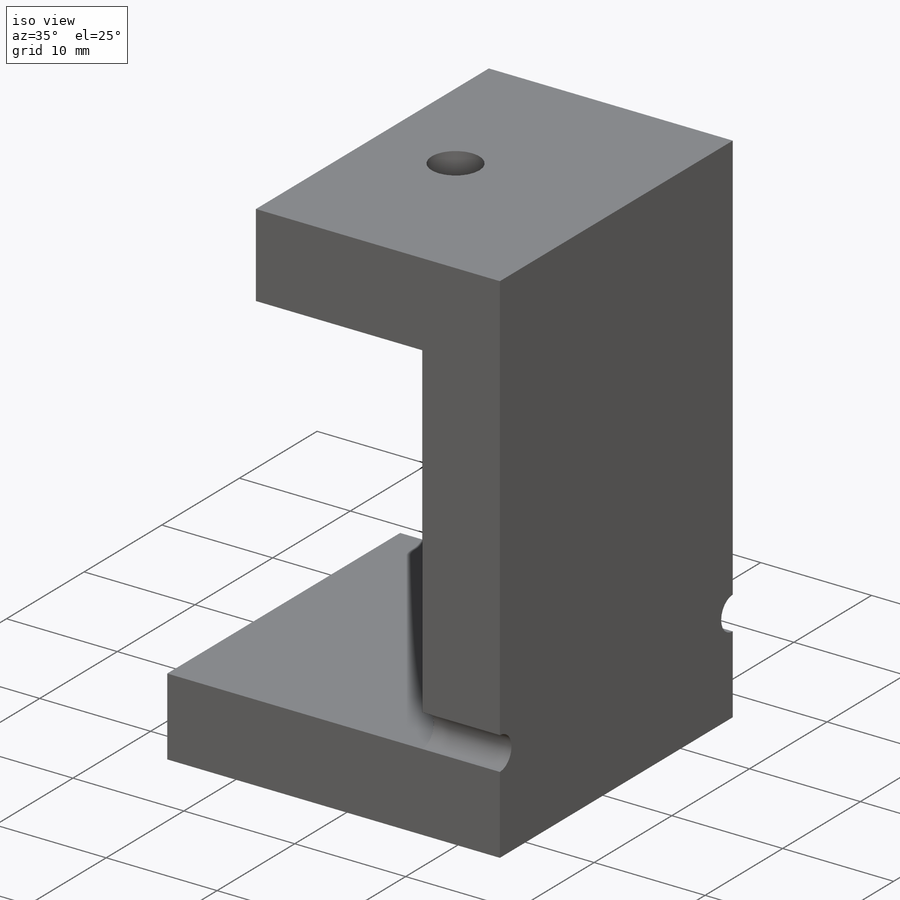
[diagram: iso view]
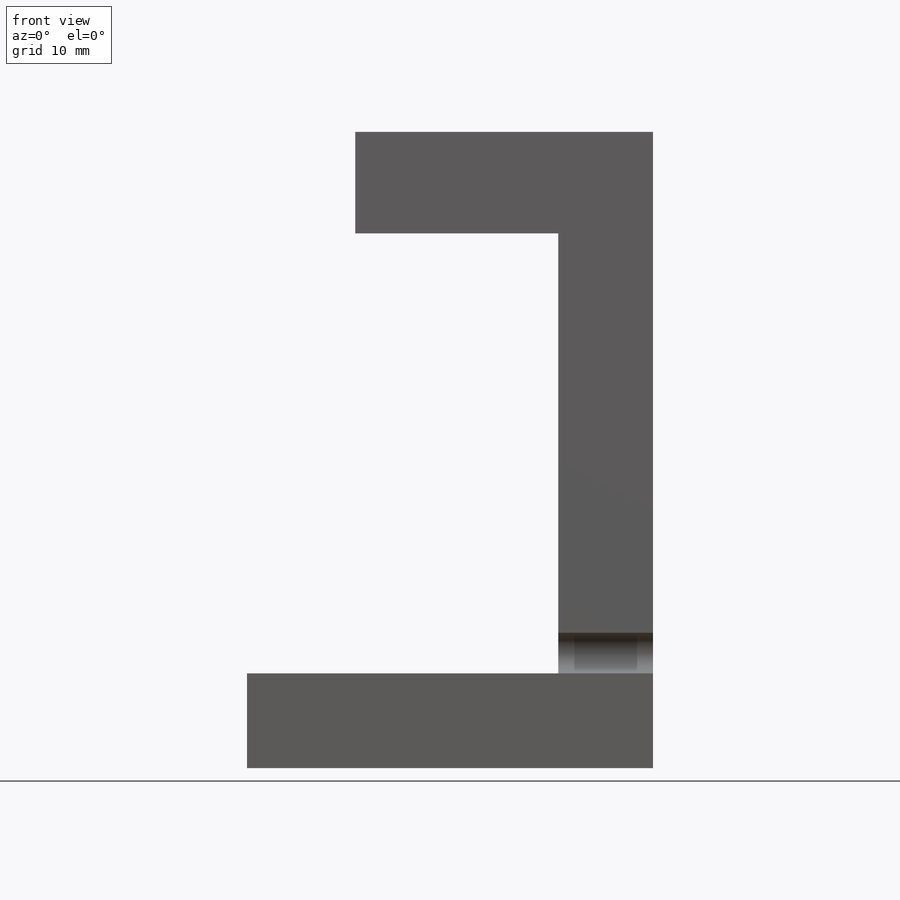
[diagram: front view]
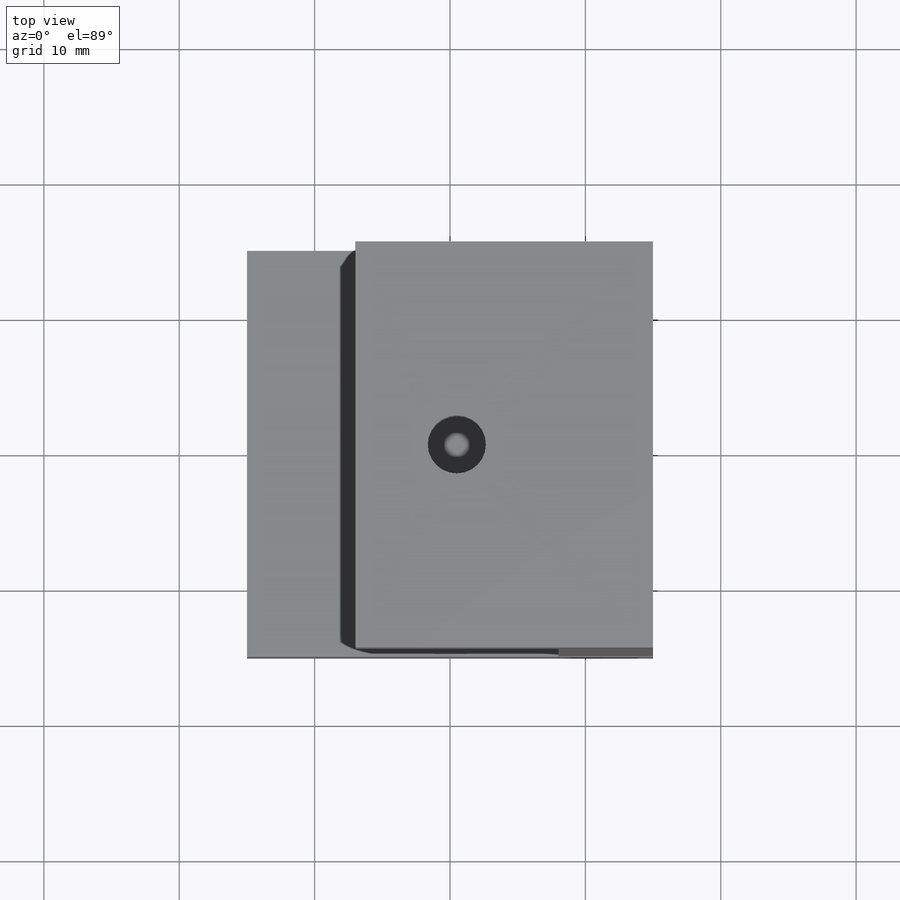
[diagram: top view]
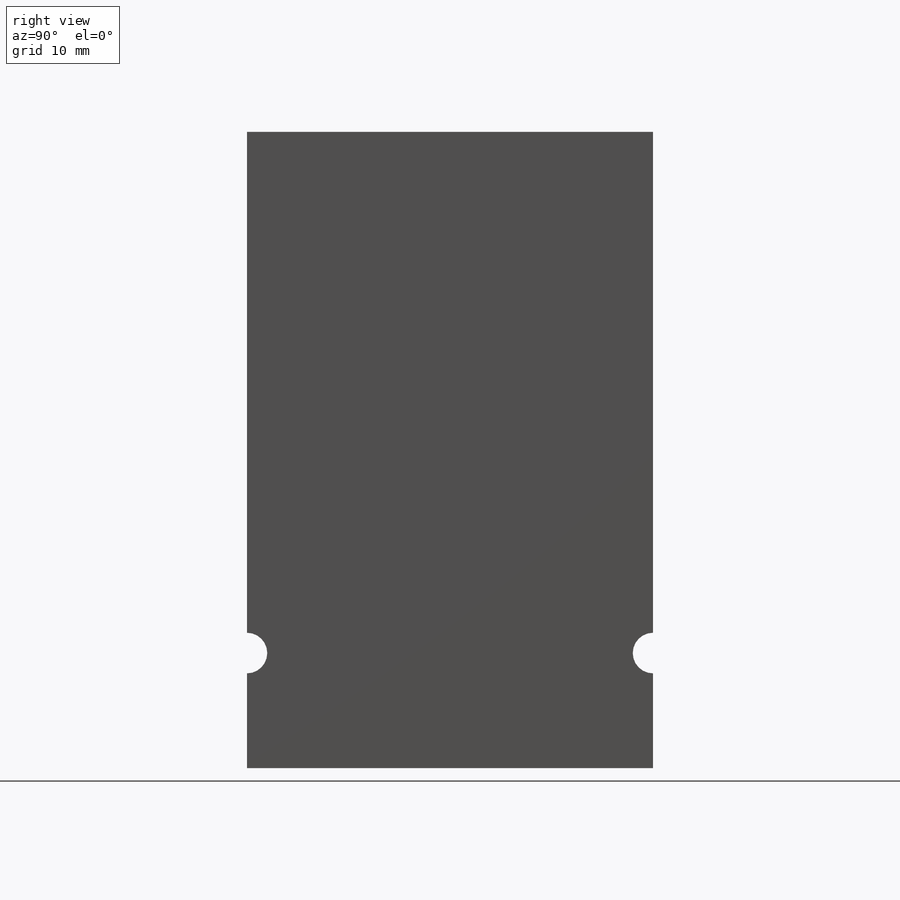
[diagram: right view]
SOLIDWORKS PART (.sldprt)
format: sldprt  version: not decoded by parser v0  size: 212,480 bytes
history: native  units: mm
features: sketch x7, extrude x3, cut_extrude x2, material x1, hole x1 (+11 scaffold rows collapsed)
feature tree (25):
  scaffold x11  (default folders/planes/origin — collapsed)
  material  "Material <not specified>"
  sketch  "Sketch1"  dims[D1=30.0mm D2=30.0mm]
  extrude  "Boss-Extrude1"  Depth=7mm
  sketch  "Sketch2"  dims[D1=7.0mm]
  extrude  "Boss-Extrude2"  Depth=40mm
  sketch  "Sketch3"  dims[D1=7.5mm]
  extrude  "Boss-Extrude3"  Depth=15mm
  sketch  "Sketch4"  dims[c1.D1=7.5mm c1.D2=10.0mm c2.D1=7.5mm c2.D2=7.5mm]
  cut_extrude  "Cut-Extrude1"  Depth=2.5mm
  hole  "M4 Clearance Hole1"  Diameter=4.3mm Depth=6mm
  sketch  "Sketch7"
  sketch  "Sketch6"  dims[hole-wizard template sketch: 50 standard entries collapsed; hole parameters above]
  sketch  "Sketch8"  dims[D2=1.5mm D1=7.0mm]
  cut_extrude  "Cut-Extrude3"  Depth=13mm
decode coverage: 12 of 13 modeling features carry decoded parameters
note: ~ marks probable driven/reference dimensions
note: suppression state not decoded; provenance and decode notes live in map.json
